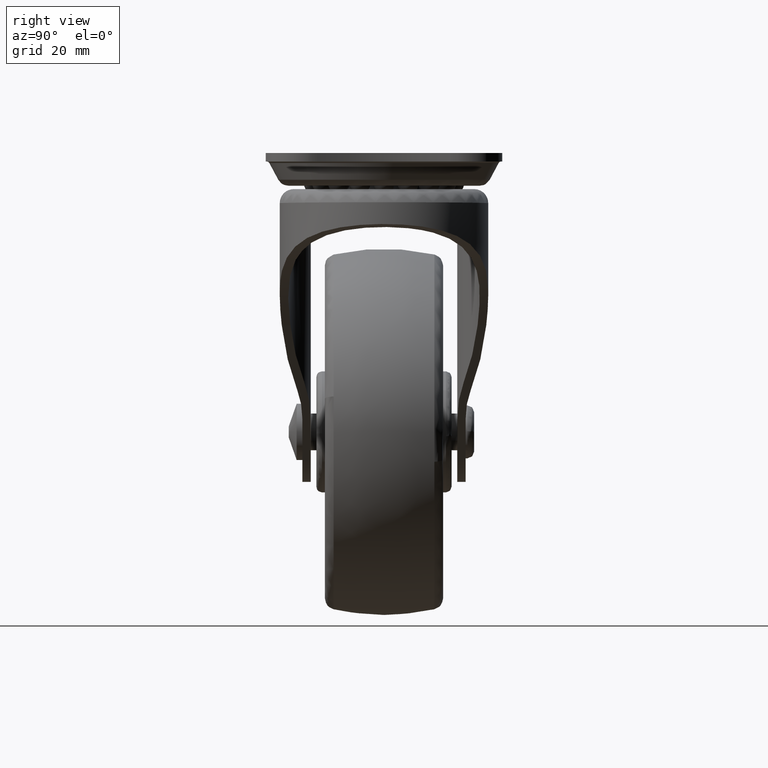
[diagram: clean part render]
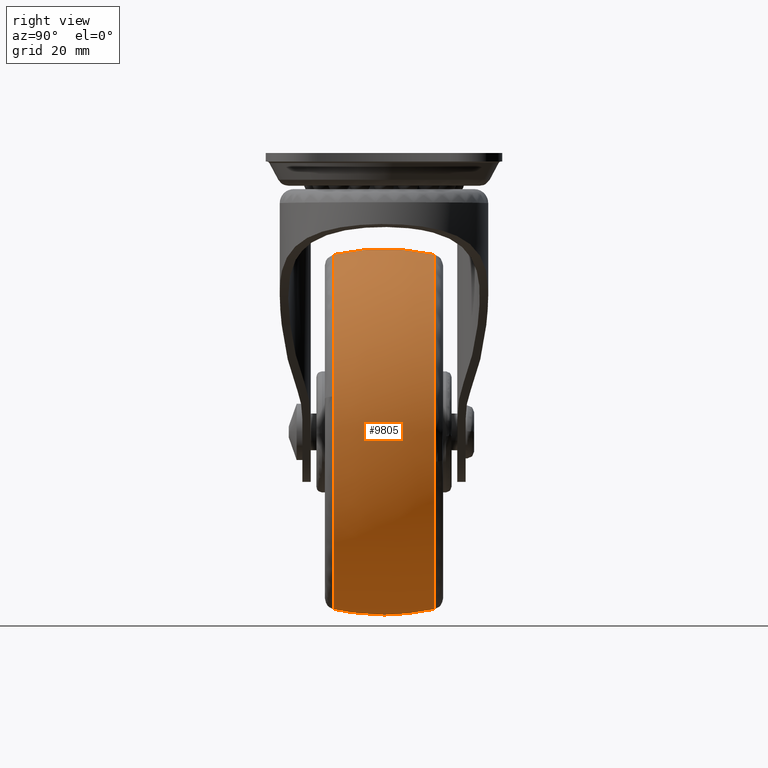
[diagram: same view with one face highlighted and labeled with its STEP entity id]
A machine part, right view. The second image highlights one B-rep face of the part: STEP entity #9805.
In plain terms, the highlighted face is a freeform B-spline surface patch.
Its self-contained STEP definition (entity closure, byte-faithful):
#8657=CARTESIAN_POINT('',(-14.191573362588580,-8.947367769147409,-77.919761408121445));
#8658=VERTEX_POINT('',#8657);
#8670=CARTESIAN_POINT('',(6.852175790700606,-8.947352225935532,-41.711833877447248));
#8671=VERTEX_POINT('',#8670);
#8672=CARTESIAN_POINT('',(-14.191573362588580,-8.947367769147409,-77.919761408121445));
#8673=CARTESIAN_POINT('',(-12.717689689774520,-8.947367566033343,-77.436687601662413));
#8674=CARTESIAN_POINT('',(-10.394718133701430,-8.947367161561708,-76.479781559681285));
#8675=CARTESIAN_POINT('',(-6.537987177489272,-8.947366244787974,-74.322516075490825));
#8676=CARTESIAN_POINT('',(-2.951805646265519,-8.947365090272362,-71.616331738833850));
#8677=CARTESIAN_POINT('',(0.046515683044445,-8.947363731024938,-68.440382710739044));
#8678=CARTESIAN_POINT('',(2.364480725153765,-8.947362396799678,-65.328069973033152));
#8679=CARTESIAN_POINT('',(3.942110080293973,-8.947361246715264,-62.648778491683530));
#8680=CARTESIAN_POINT('',(5.440941838455591,-8.947359820360679,-59.329659464236663));
#8681=CARTESIAN_POINT('',(6.565950619641741,-8.947358355203930,-55.923681243968737));
#8682=CARTESIAN_POINT('',(7.394058708254772,-8.947356483620746,-51.577938218382258));
#8683=CARTESIAN_POINT('',(7.601468980823745,-8.947354421194344,-46.794901541768198));
#8684=CARTESIAN_POINT('',(7.197804333671484,-8.947352958363421,-43.406961143033470));
#8685=CARTESIAN_POINT('',(6.852175790700606,-8.947352225935532,-41.711833877447248));
#8686=B_SPLINE_CURVE_WITH_KNOTS('',3,(#8672,#8673,#8674,#8675,#8676,#8677,#8678,#8679,#8680,#8681,#8682,#8683,#8684,#8685),.UNSPECIFIED.,.F.,.U.,(4,1,1,1,1,1,1,1,1,1,1,4),(0.000000055767067,4.653076108980855,7.516543311768828,13.243465087484591,18.075556609284430,20.581063962817769,24.876181258176299,27.381739276466821,31.497939529478899,35.614162258284281,40.625202234340222,45.815200825111098),.UNSPECIFIED.);
#8687=EDGE_CURVE('',#8658,#8671,#8686,.T.);
#8802=CARTESIAN_POINT('',(-24.0,-8.947340870934173,-16.513522815849281));
#8803=VERTEX_POINT('',#8802);
#8804=CARTESIAN_POINT('',(6.852175790700606,-8.947352225935532,-41.711833877447248));
#8805=CARTESIAN_POINT('',(6.527034926504818,-8.947351517333038,-40.116090961403302));
#8806=CARTESIAN_POINT('',(5.597365363718685,-8.947350072797891,-36.866936916534733));
#8807=CARTESIAN_POINT('',(3.752628631350327,-8.947348322158206,-32.939706226433287));
#8808=CARTESIAN_POINT('',(1.727699656728038,-8.947346903070555,-29.763947161766389));
#8809=CARTESIAN_POINT('',(-0.732075995369698,-8.947345495034274,-26.619468398303560));
#8810=CARTESIAN_POINT('',(-3.831879063804434,-8.947344164223319,-23.658715147563790));
#8811=CARTESIAN_POINT('',(-7.198047736764933,-8.947343101153752,-21.306560780897801));
#8812=CARTESIAN_POINT('',(-10.095027746317429,-8.947342367905751,-19.692531614283940));
#8813=CARTESIAN_POINT('',(-12.881362088398379,-8.947341814797793,-18.483762674709030));
#8814=CARTESIAN_POINT('',(-16.256598331414459,-8.947341318239687,-17.411278137106109));
#8815=CARTESIAN_POINT('',(-19.900597830944740,-8.947340975642184,-16.690440200302259));
#8816=CARTESIAN_POINT('',(-22.652255092729789,-8.947340879589437,-16.513483098372539));
#8817=CARTESIAN_POINT('',(-24.0,-8.947340870934173,-16.513522815849281));
#8818=B_SPLINE_CURVE_WITH_KNOTS('',3,(#8804,#8805,#8806,#8807,#8808,#8809,#8810,#8811,#8812,#8813,#8814,#8815,#8816,#8817),.UNSPECIFIED.,.F.,.U.,(4,1,1,1,1,1,1,1,1,1,1,4),(0.000000052443596,4.885586119191387,10.108160314228741,12.972149998973739,16.173082004783890,22.069474093238579,25.775807759695400,28.471316147190919,32.009176216199748,34.873160235427392,39.084917208888847,43.128154558286013),.UNSPECIFIED.);
#8819=EDGE_CURVE('',#8671,#8803,#8818,.T.);
#8821=CARTESIAN_POINT('',(-55.275879273257722,-8.947364501282465,-44.364472963487692));
#8822=VERTEX_POINT('',#8821);
#8840=CARTESIAN_POINT('',(-24.0,-8.947368421051801,-79.486462861437403));
#8841=VERTEX_POINT('',#8840);
#8842=CARTESIAN_POINT('',(-55.275879273257722,-8.947364501282465,-44.364472963487692));
#8843=CARTESIAN_POINT('',(-55.475597283087247,-8.947364597088612,-46.081491136858418));
#8844=CARTESIAN_POINT('',(-55.570276651614819,-8.947364768799485,-48.924418130386712));
#8845=CARTESIAN_POINT('',(-55.134522294130932,-8.947365058784570,-53.195128876743141));
#8846=CARTESIAN_POINT('',(-54.166586044718599,-8.947365377470160,-57.453021343174441));
#8847=CARTESIAN_POINT('',(-52.577124120207067,-8.947365714448059,-61.451325490263500));
#8848=CARTESIAN_POINT('',(-50.502842139088841,-8.947366058386383,-65.129724955832287));
#8849=CARTESIAN_POINT('',(-48.057799094755460,-8.947366403225136,-68.492421535057460));
#8850=CARTESIAN_POINT('',(-45.139298753427362,-8.947366749751293,-71.460630064731930));
#8851=CARTESIAN_POINT('',(-41.699396348197070,-8.947367107314291,-74.141838365181485));
#8852=CARTESIAN_POINT('',(-37.886012382301061,-8.947367459990131,-76.411948993370771));
#8853=CARTESIAN_POINT('',(-33.753989044190519,-8.947367790409537,-78.040755766702858));
#8854=CARTESIAN_POINT('',(-29.047404858871580,-8.947368123124271,-79.194794863883175));
#8855=CARTESIAN_POINT('',(-26.005185718732161,-8.947368309922544,-79.486722535317725));
#8856=CARTESIAN_POINT('',(-24.0,-8.947368421051801,-79.486462861437403));
#8857=B_SPLINE_CURVE_WITH_KNOTS('',3,(#8842,#8843,#8844,#8845,#8846,#8847,#8848,#8849,#8850,#8851,#8852,#8853,#8854,#8855,#8856),.UNSPECIFIED.,.F.,.U.,(4,1,1,1,1,1,1,1,1,1,1,1,4),(0.000000062039312,5.185761754282154,8.504708817653189,12.860778730980670,18.254031924229849,21.365503234611300,25.514133001383140,30.699910349579302,33.811378541401943,38.582333408992042,43.975577857557283,47.087074790483548,53.102572850210620),.UNSPECIFIED.);
#8858=EDGE_CURVE('',#8822,#8841,#8857,.T.);
#8860=CARTESIAN_POINT('',(-24.0,-8.947368421051801,-79.486462861437403));
#8861=CARTESIAN_POINT('',(-22.077829748925041,-8.947368421139350,-79.486673442309311));
#8862=CARTESIAN_POINT('',(-18.753112906234790,-8.947368293943187,-79.180986411813905));
#8863=CARTESIAN_POINT('',(-15.524420115912120,-8.947367950975686,-78.356743827955995));
#8864=CARTESIAN_POINT('',(-14.191573362588580,-8.947367769147409,-77.919761408121445));
#8865=B_SPLINE_CURVE_WITH_KNOTS('',3,(#8860,#8861,#8862,#8863,#8864),.UNSPECIFIED.,.F.,.U.,(4,1,4),(2.694824E-009,5.766465099363153,9.974427663513923),.UNSPECIFIED.);
#8866=EDGE_CURVE('',#8841,#8658,#8865,.T.);
#8895=CARTESIAN_POINT('',(7.038046720047706,8.947363889030726,-53.295019825239017));
#8896=VERTEX_POINT('',#8895);
#8897=CARTESIAN_POINT('',(-24.0,8.947357196404862,-16.513526562516940));
#8898=VERTEX_POINT('',#8897);
#8899=CARTESIAN_POINT('',(7.038046720047706,8.947363889030726,-53.295019825239017));
#8900=CARTESIAN_POINT('',(7.398213648189839,8.947363499045306,-51.185721114477197));
#8901=CARTESIAN_POINT('',(7.642603484785274,8.947362825589488,-47.537309085255508));
#8902=CARTESIAN_POINT('',(7.164696301386623,8.947362000948232,-43.057677306471788));
#8903=CARTESIAN_POINT('',(6.391305393571802,8.947361360651163,-39.573137704824973));
#8904=CARTESIAN_POINT('',(5.433837207384327,8.947360825137162,-36.653965614860830));
#8905=CARTESIAN_POINT('',(4.029052776955092,8.947360252689000,-33.527483641320323));
#8906=CARTESIAN_POINT('',(2.014798983891588,8.947359621062006,-30.070514557910482));
#8907=CARTESIAN_POINT('',(-0.475617141933085,8.947359049026396,-26.929253196431500));
#8908=CARTESIAN_POINT('',(-3.557651154365113,8.947358509135535,-23.953047012512449));
#8909=CARTESIAN_POINT('',(-6.463090812558730,8.947358111082053,-21.748809807981811));
#8910=CARTESIAN_POINT('',(-9.680547864379523,8.947357778104520,-19.892597880656361));
#8911=CARTESIAN_POINT('',(-12.878885699323551,8.947357525423907,-18.472148503760639));
#8912=CARTESIAN_POINT('',(-16.490558893875900,8.947357325588005,-17.331803810537700));
#8913=CARTESIAN_POINT('',(-20.291016112741779,8.947357211448187,-16.653240314115621));
#8914=CARTESIAN_POINT('',(-22.858780172705771,8.947357193104041,-16.513513478174470));
#8915=CARTESIAN_POINT('',(-24.0,8.947357196404862,-16.513526562516940));
#8916=B_SPLINE_CURVE_WITH_KNOTS('',3,(#8899,#8900,#8901,#8902,#8903,#8904,#8905,#8906,#8907,#8908,#8909,#8910,#8911,#8912,#8913,#8914,#8915),.UNSPECIFIED.,.F.,.U.,(4,1,1,1,1,1,1,1,1,1,1,1,1,1,4),(0.000000062993415,6.419423060608800,10.913051503574200,13.480828197411780,17.118527756271529,20.114270961651489,23.751966844608649,29.101425375830530,32.097186356031472,36.590807708952013,40.014522044705238,43.224243400058413,47.075935353222917,51.355571914166049,54.779238878384326),.UNSPECIFIED.);
#8917=EDGE_CURVE('',#8896,#8898,#8916,.T.);
#9031=CARTESIAN_POINT('',(-24.0,8.947368421051781,-79.486462861437403));
#9032=VERTEX_POINT('',#9031);
#9033=CARTESIAN_POINT('',(-24.0,8.947368421051781,-79.486462861437403));
#9034=CARTESIAN_POINT('',(-22.678144340235040,8.947368421059730,-79.486508984439055));
#9035=CARTESIAN_POINT('',(-20.149390607116839,8.947368393456671,-79.326985233727044));
#9036=CARTESIAN_POINT('',(-16.583518051310460,8.947368278982166,-78.665414417673276));
#9037=CARTESIAN_POINT('',(-12.726620998121669,8.947368077693165,-77.502126018863109));
#9038=CARTESIAN_POINT('',(-8.947652285508616,8.947367780086724,-75.782199592332589));
#9039=CARTESIAN_POINT('',(-5.365196069365206,8.947367380778937,-73.474520705661106));
#9040=CARTESIAN_POINT('',(-2.219913478322960,8.947366929133937,-70.864376023445814));
#9041=CARTESIAN_POINT('',(0.911504879778636,8.947366343637006,-67.480673166397096));
#9042=CARTESIAN_POINT('',(3.875073717905343,8.947365569697100,-63.007922704729879));
#9043=CARTESIAN_POINT('',(5.964559148170260,8.947364724937946,-58.125890345155447));
#9044=CARTESIAN_POINT('',(6.786800105327703,8.947364143909388,-54.768017062659148));
#9045=CARTESIAN_POINT('',(7.038046720047706,8.947363889030726,-53.295019825239017));
#9046=B_SPLINE_CURVE_WITH_KNOTS('',3,(#9033,#9034,#9035,#9036,#9037,#9038,#9039,#9040,#9041,#9042,#9043,#9044,#9045),.UNSPECIFIED.,.F.,.U.,(4,1,1,1,1,1,1,1,1,1,4),(0.000000054868366,3.965566152538877,7.586302473511623,10.862227418985460,16.034725941796140,20.000304951517862,23.621024731402610,28.276253997050588,33.793599029564533,39.655755811516997,44.138577110571447),.UNSPECIFIED.);
#9047=EDGE_CURVE('',#9032,#8896,#9046,.T.);
#9049=CARTESIAN_POINT('',(-55.275875461670502,8.947381195837217,-44.364473355810297));
#9050=VERTEX_POINT('',#9049);
#9051=CARTESIAN_POINT('',(-55.275875461670502,8.947381195837217,-44.364473355810297));
#9052=CARTESIAN_POINT('',(-55.435580550279887,8.947380946034633,-45.738084149195217));
#9053=CARTESIAN_POINT('',(-55.584022458947231,8.947380369145252,-48.714029789167270));
#9054=CARTESIAN_POINT('',(-55.208994830273411,8.947379474945850,-52.788000237697453));
#9055=CARTESIAN_POINT('',(-54.346590162452820,8.947378537871007,-56.639318061566570));
#9056=CARTESIAN_POINT('',(-52.946044315116033,8.947377461307204,-60.699032039722809));
#9057=CARTESIAN_POINT('',(-50.814325931559921,8.947376253216959,-64.755997508231374));
#9058=CARTESIAN_POINT('',(-48.076027483712068,8.947375015459958,-68.419049487167385));
#9059=CARTESIAN_POINT('',(-45.191739527754457,8.947373887447126,-71.411117661623379));
#9060=CARTESIAN_POINT('',(-41.882295724211637,8.947372755548301,-74.043744866725859));
#9061=CARTESIAN_POINT('',(-38.294911569641243,8.947371680794761,-76.147170995988489));
#9062=CARTESIAN_POINT('',(-35.048966412143599,8.947370812019299,-77.539283186005036));
#9063=CARTESIAN_POINT('',(-31.815686086759900,8.947370020473613,-78.561971728372654));
#9064=CARTESIAN_POINT('',(-28.217758755980910,8.947369221853878,-79.294816267140021));
#9065=CARTESIAN_POINT('',(-25.452021308000699,8.947368683343349,-79.486518959205327));
#9066=CARTESIAN_POINT('',(-24.0,8.947368421051781,-79.486462861437403));
#9067=B_SPLINE_CURVE_WITH_KNOTS('',3,(#9051,#9052,#9053,#9054,#9055,#9056,#9057,#9058,#9059,#9060,#9061,#9062,#9063,#9064,#9065,#9066),.UNSPECIFIED.,.F.,.U.,(4,1,1,1,1,1,1,1,1,1,1,1,1,4),(0.000000061933520,4.148600666051550,8.919553309760495,12.238482597905181,15.972264253397270,21.780384913344601,25.929042602430950,29.662756984992541,34.226252892657271,38.582331612061068,42.108686072924797,44.805294845864239,48.746507992141552,53.102570377043413),.UNSPECIFIED.);
#9068=EDGE_CURVE('',#9050,#9032,#9067,.T.);
#9724=CARTESIAN_POINT('',(-55.058100501027340,-9.854040640681763,-44.389750506578594));
#9725=CARTESIAN_POINT('',(-56.282628353075140,-5.004132315443423,-44.247409343142706));
#9726=CARTESIAN_POINT('',(-56.282628353075133,7.439483E-015,-44.247409343142714));
#9727=CARTESIAN_POINT('',(-56.282628353075118,5.004138953776629,-44.247409343142706));
#9728=CARTESIAN_POINT('',(-55.058097302244441,9.854053309885787,-44.389750878410439));
#9729=CARTESIAN_POINT('',(-55.267226919806681,-9.854040640681760,-46.188816343986147));
#9730=CARTESIAN_POINT('',(-56.499999999999893,-5.004132315443421,-46.117406956480998));
#9731=CARTESIAN_POINT('',(-56.499999999999886,7.439483E-015,-46.117406956481005));
#9732=CARTESIAN_POINT('',(-56.499999999999893,5.004138953776629,-46.117406956480998));
#9733=CARTESIAN_POINT('',(-55.267223699485115,9.854053309885785,-46.188816530525898));
#9734=CARTESIAN_POINT('',(-55.267226919806681,-9.854040640681763,-47.999996000000010));
#9735=CARTESIAN_POINT('',(-56.499999999999901,-5.004132315443423,-47.999996000000003));
#9736=CARTESIAN_POINT('',(-56.499999999999893,7.439483E-015,-47.999996000000003));
#9737=CARTESIAN_POINT('',(-56.499999999999886,5.004138953776630,-47.999995999999989));
#9738=CARTESIAN_POINT('',(-55.267223699485122,9.854053309885787,-47.999995999999996));
#9739=CARTESIAN_POINT('',(-55.267226919806674,-9.854040640681761,-79.267222919806684));
#9740=CARTESIAN_POINT('',(-56.499999999999886,-5.004132315443421,-80.499995999999896));
#9741=CARTESIAN_POINT('',(-56.499999999999901,7.439483E-015,-80.499995999999896));
#9742=CARTESIAN_POINT('',(-56.499999999999886,5.004138953776628,-80.499995999999882));
#9743=CARTESIAN_POINT('',(-55.267223699485115,9.854053309885785,-79.267219699485139));
#9744=CARTESIAN_POINT('',(-24.000000000000007,-9.854040640681763,-79.267222919806684));
#9745=CARTESIAN_POINT('',(-24.000000000000004,-5.004132315443423,-80.499995999999882));
#9746=CARTESIAN_POINT('',(-24.0,7.439483E-015,-80.499995999999896));
#9747=CARTESIAN_POINT('',(-23.999999999999993,5.004138953776630,-80.499995999999896));
#9748=CARTESIAN_POINT('',(-23.999999999999996,9.854053309885787,-79.267219699485111));
#9749=CARTESIAN_POINT('',(7.267226919806679,-9.854040640681761,-79.267222919806684));
#9750=CARTESIAN_POINT('',(8.499999999999892,-5.004132315443421,-80.499995999999896));
#9751=CARTESIAN_POINT('',(8.499999999999892,7.439483E-015,-80.499995999999896));
#9752=CARTESIAN_POINT('',(8.499999999999890,5.004138953776628,-80.499995999999882));
#9753=CARTESIAN_POINT('',(7.267223699485118,9.854053309885785,-79.267219699485139));
#9754=CARTESIAN_POINT('',(7.267226919806676,-9.854040640681763,-47.999996000000010));
#9755=CARTESIAN_POINT('',(8.499999999999890,-5.004132315443423,-47.999996000000003));
#9756=CARTESIAN_POINT('',(8.499999999999890,7.439483E-015,-47.999996000000003));
#9757=CARTESIAN_POINT('',(8.499999999999890,5.004138953776630,-47.999995999999989));
#9758=CARTESIAN_POINT('',(7.267223699485117,9.854053309885787,-47.999995999999996));
#9759=CARTESIAN_POINT('',(7.267226919806679,-9.854040640681761,-16.732769080193325));
#9760=CARTESIAN_POINT('',(8.499999999999892,-5.004132315443421,-15.499996000000115));
#9761=CARTESIAN_POINT('',(8.499999999999892,7.439483E-015,-15.499996000000110));
#9762=CARTESIAN_POINT('',(8.499999999999890,5.004138953776628,-15.499996000000104));
#9763=CARTESIAN_POINT('',(7.267223699485118,9.854053309885785,-16.732772300514888));
#9764=CARTESIAN_POINT('',(-24.000000000000007,-9.854040640681763,-16.732769080193325));
#9765=CARTESIAN_POINT('',(-24.000000000000004,-5.004132315443423,-15.499996000000115));
#9766=CARTESIAN_POINT('',(-24.0,7.439483E-015,-15.499996000000110));
#9767=CARTESIAN_POINT('',(-23.999999999999993,5.004138953776630,-15.499996000000115));
#9768=CARTESIAN_POINT('',(-23.999999999999996,9.854053309885787,-16.732772300514888));
#9776=(BOUNDED_SURFACE()B_SPLINE_SURFACE(2,2,((#9724,#9729,#9734,#9739,#9744,#9749,#9754,#9759,#9764),(#9725,#9730,#9735,#9740,#9745,#9750,#9755,#9760,#9765),(#9726,#9731,#9736,#9741,#9746,#9751,#9756,#9761,#9766),(#9727,#9732,#9737,#9742,#9747,#9752,#9757,#9762,#9767),(#9728,#9733,#9738,#9743,#9748,#9753,#9758,#9763,#9768)),.UNSPECIFIED.,.F.,.F.,.U.)B_SPLINE_SURFACE_WITH_KNOTS((3,2,3),(3,2,2,2,3),(0.0,10.297824951450510,20.595662974978659),(0.0,4.307820149998673,58.155583258500847,112.003346367003000,165.851109475505210),.UNSPECIFIED.)GEOMETRIC_REPRESENTATION_ITEM()RATIONAL_B_SPLINE_SURFACE(((0.889902528244312,0.908207147476469,0.929998359982180,0.657608146835767,0.929998359982180,0.657608146835767,0.929998359982180,0.657608146835767,0.929998359982180),(0.915649228369338,0.934483437671549,0.956905114521318,0.676634095430114,0.956905114521318,0.676634095430114,0.956905114521318,0.676634095430114,0.956905114521318),(0.956886126402807,0.976568547383107,1.0,0.707106781186548,1.0,0.707106781186548,1.0,0.707106781186548,1.0),(0.915649176023146,0.934483384248634,0.956905059816592,0.676634056748031,0.956905059816592,0.676634056748031,0.956905059816592,0.676634056748031,0.956905059816592),(0.889902462878521,0.908207080766154,0.929998291671240,0.657608098532639,0.929998291671240,0.657608098532639,0.929998291671240,0.657608098532639,0.929998291671240)))REPRESENTATION_ITEM('')SURFACE());
#9777=ORIENTED_EDGE('',*,*,#8858,.F.);
#9778=CARTESIAN_POINT('',(-55.275879273257722,-8.947364501282465,-44.364472963487692));
#9779=CARTESIAN_POINT('',(-55.923853232280493,-6.107355098307554,-44.289151363618622));
#9780=CARTESIAN_POINT('',(-56.435349379735307,-1.693074643366643,-44.229694171537872));
#9781=CARTESIAN_POINT('',(-56.139902771584090,4.324994442551107,-44.264037369216048));
#9782=CARTESIAN_POINT('',(-55.630968013994519,7.389929150818712,-44.323196799786807));
#9783=CARTESIAN_POINT('',(-55.275875461670502,8.947381195837217,-44.364473355810297));
#9784=B_SPLINE_CURVE_WITH_KNOTS('',3,(#9778,#9779,#9780,#9781,#9782,#9783),.UNSPECIFIED.,.F.,.U.,(4,1,1,4),(2.740745E-009,8.741748157686965,13.253612741880371,18.047472893652159),.UNSPECIFIED.);
#9785=EDGE_CURVE('',#8822,#9050,#9784,.T.);
#9786=ORIENTED_EDGE('',*,*,#9785,.T.);
#9787=ORIENTED_EDGE('',*,*,#9068,.T.);
#9788=ORIENTED_EDGE('',*,*,#9047,.T.);
#9789=ORIENTED_EDGE('',*,*,#8917,.T.);
#9790=CARTESIAN_POINT('',(-24.0,-8.947340870934173,-16.513522815849281));
#9791=CARTESIAN_POINT('',(-23.999999999999989,-7.389892392206070,-16.156042250996741));
#9792=CARTESIAN_POINT('',(-24.000000000000039,-4.324962669312268,-15.643654300631541));
#9793=CARTESIAN_POINT('',(-24.000000000000011,0.094529539431580,-15.425367789490871));
#9794=CARTESIAN_POINT('',(-24.000000000000099,4.510729730970928,-15.674716256663171));
#9795=CARTESIAN_POINT('',(-23.999999999999911,7.389908931962775,-16.156048391189010));
#9796=CARTESIAN_POINT('',(-24.0,8.947357196404862,-16.513526562516940));
#9797=B_SPLINE_CURVE_WITH_KNOTS('',3,(#9790,#9791,#9792,#9793,#9794,#9795,#9796),.UNSPECIFIED.,.F.,.U.,(4,1,1,1,4),(2.740961E-009,4.793847173865277,9.305699541008929,13.253576854213049,18.047424025337349),.UNSPECIFIED.);
#9798=EDGE_CURVE('',#8803,#8898,#9797,.T.);
#9799=ORIENTED_EDGE('',*,*,#9798,.F.);
#9800=ORIENTED_EDGE('',*,*,#8819,.F.);
#9801=ORIENTED_EDGE('',*,*,#8687,.F.);
#9802=ORIENTED_EDGE('',*,*,#8866,.F.);
#9803=EDGE_LOOP('',(#9777,#9786,#9787,#9788,#9789,#9799,#9800,#9801,#9802));
#9804=FACE_OUTER_BOUND('',#9803,.T.);
#9805=ADVANCED_FACE('',(#9804),#9776,.T.);